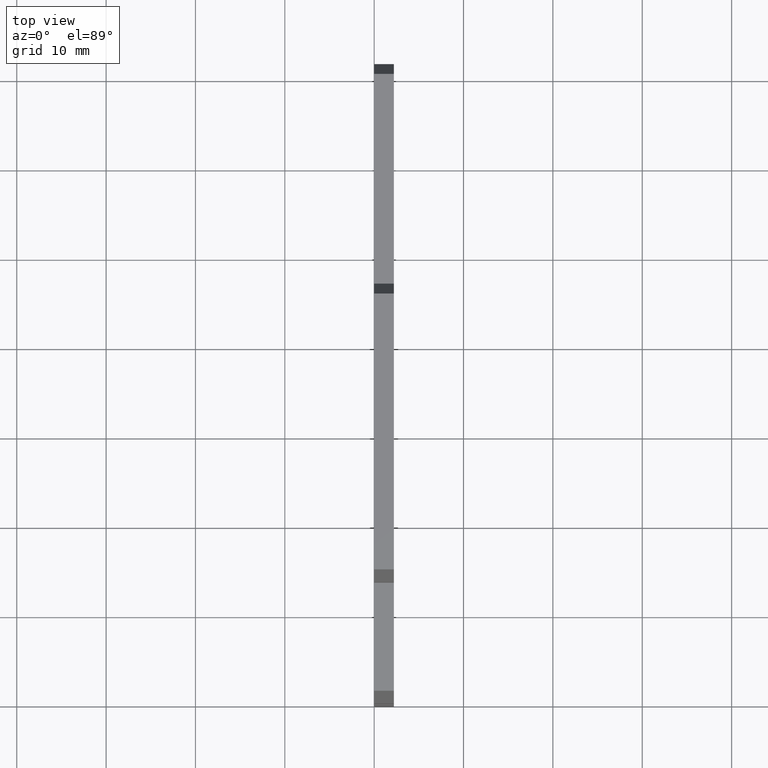
[diagram: clean part render]
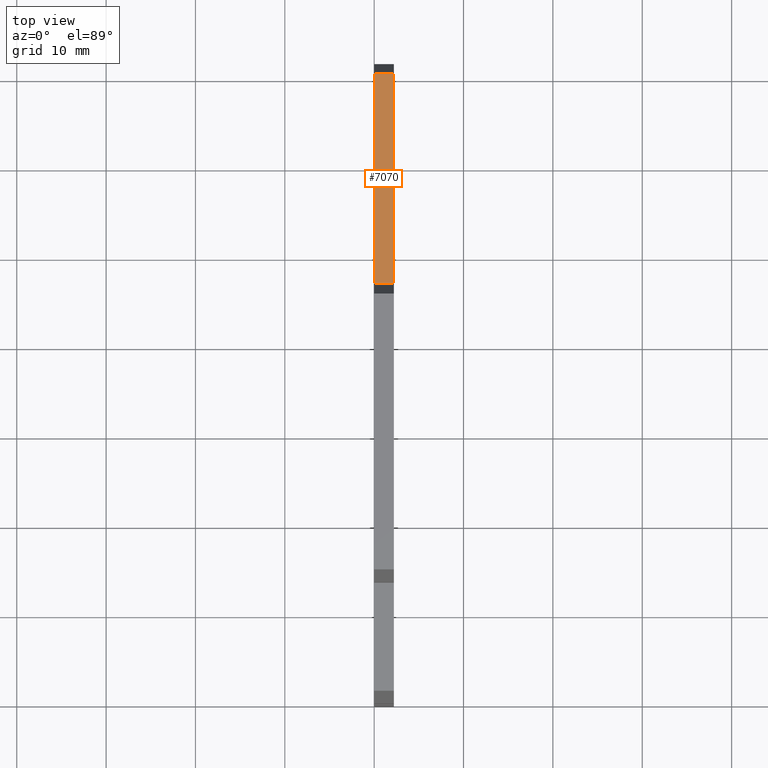
[diagram: same view with one face highlighted and labeled with its STEP entity id]
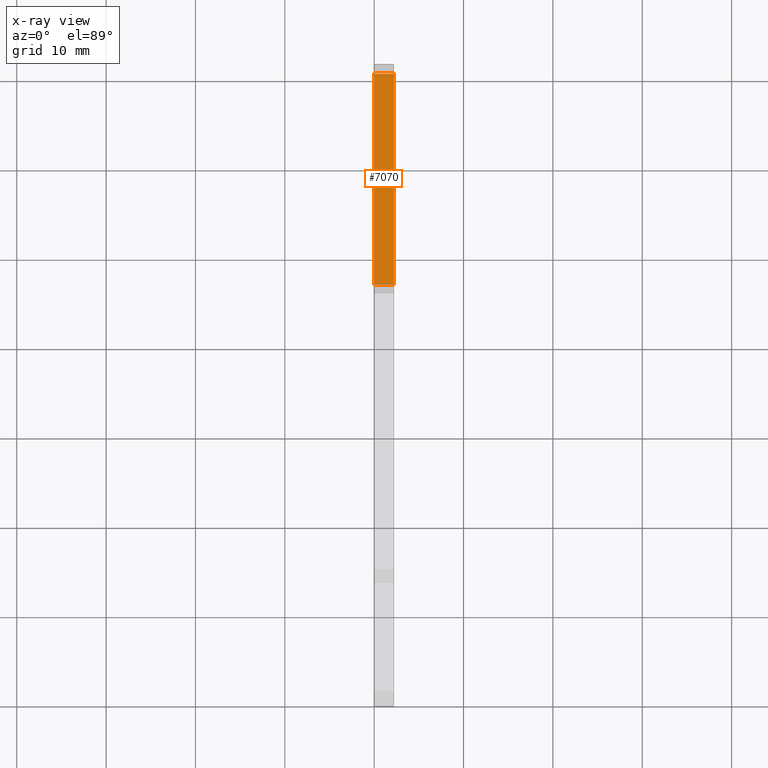
[diagram: x-ray of the same camera — body ghosted, the highlighted face saturated]
A machine part, top view. The second image highlights one B-rep face of the part: STEP entity #7070.
The next image is the same camera in x-ray: the body ghosted, the highlighted face saturated — about 0% of this face is hidden behind the body in this view.
In plain terms, the highlighted planar face has unit normal (-0, -0, 1).
Its self-contained STEP definition (entity closure, byte-faithful):
#1260=CARTESIAN_POINT('',(118.232395853898,-11.2000000000031,53.67));
#1270=VERTEX_POINT('',#1260);
#1300=CARTESIAN_POINT('',(104.930098,-11.2000000000031,53.67));
#1310=DIRECTION('',(1.,0.,0.));
#1320=VECTOR('',#1310,1.);
#1330=LINE('',#1300,#1320);
#1340=CARTESIAN_POINT('',(94.6323955311728,-11.2000000000031,53.67));
#1350=VERTEX_POINT('',#1340);
#1360=EDGE_CURVE('',#1350,#1270,#1330,.T.);
#1650=CARTESIAN_POINT('',(94.6323955311728,-11.2000000000031,55.87));
#1660=VERTEX_POINT('',#1650);
#1690=CARTESIAN_POINT('',(104.930098,-11.2000000000031,55.87));
#1700=DIRECTION('',(1.,0.,0.));
#1710=VECTOR('',#1700,1.);
#1720=LINE('',#1690,#1710);
#1730=CARTESIAN_POINT('',(118.232395853898,-11.2000000000031,55.87));
#1740=VERTEX_POINT('',#1730);
#1750=EDGE_CURVE('',#1660,#1740,#1720,.T.);
#5490=CARTESIAN_POINT('',(94.6323955311728,-11.2000000000031,53.67));
#5500=DIRECTION('',(2.46209646432132E-14,0.,-1.));
#5510=VECTOR('',#5500,1.);
#5520=LINE('',#5490,#5510);
#5530=EDGE_CURVE('',#1660,#1350,#5520,.T.);
#6610=CARTESIAN_POINT('',(118.232395853898,-11.2000000000031,53.67));
#6620=DIRECTION('',(0.,0.,-1.));
#6630=VECTOR('',#6620,1.);
#6640=LINE('',#6610,#6630);
#6650=EDGE_CURVE('',#1740,#1270,#6640,.T.);
#6960=CARTESIAN_POINT('',(94.6323955311728,-11.2000000000031,53.67));
#6970=DIRECTION('',(0.,1.,-0.));
#6980=DIRECTION('',(-1.,0.,0.));
#6990=AXIS2_PLACEMENT_3D('',#6960,#6970,#6980);
#7000=PLANE('',#6990);
#7010=ORIENTED_EDGE('',*,*,#6650,.T.);
#7020=ORIENTED_EDGE('',*,*,#1750,.T.);
#7030=ORIENTED_EDGE('',*,*,#5530,.F.);
#7040=ORIENTED_EDGE('',*,*,#1360,.F.);
#7050=EDGE_LOOP('',(#7040,#7030,#7020,#7010));
#7060=FACE_OUTER_BOUND('',#7050,.T.);
#7070=ADVANCED_FACE('',(#7060),#7000,.T.);